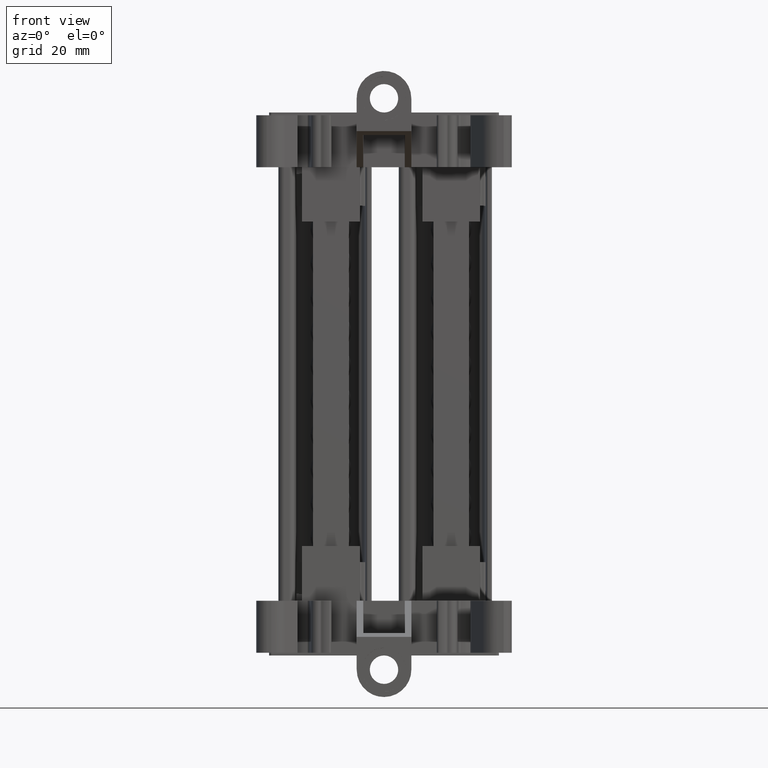
[diagram: clean part render]
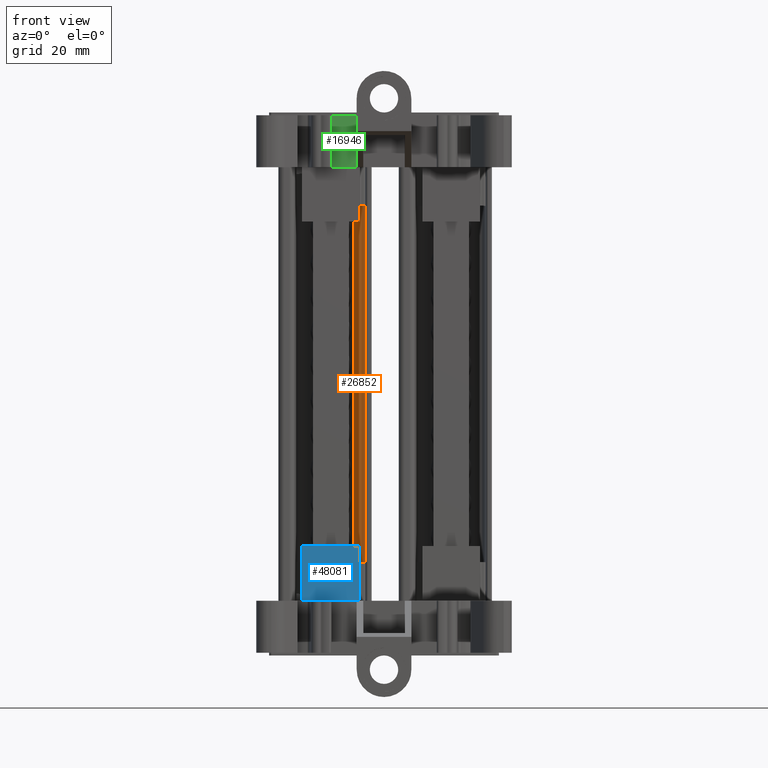
[diagram: same view with three faces highlighted in distinct colors, each labeled with its STEP entity id]
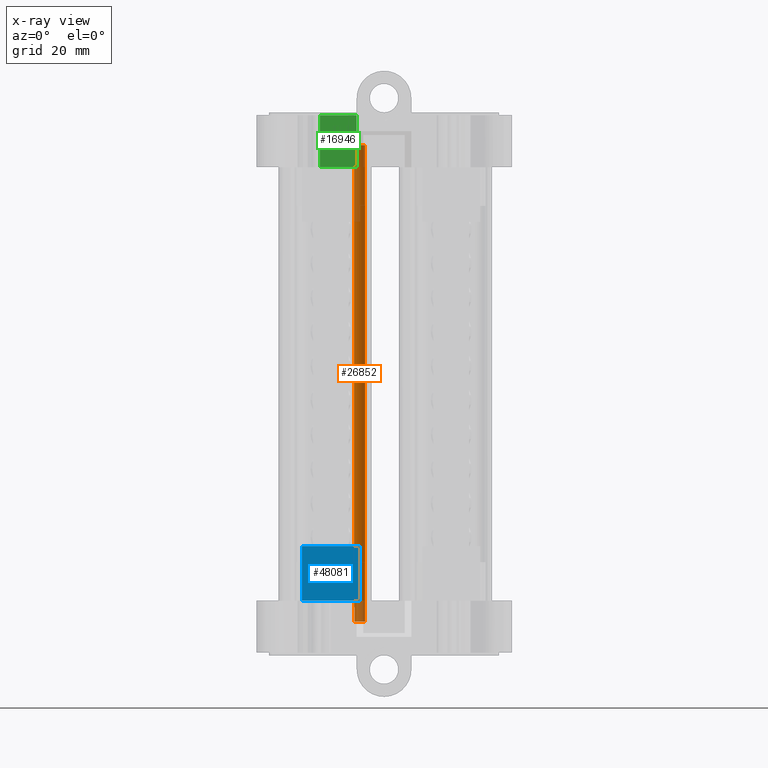
[diagram: x-ray of the same camera — body ghosted, the three highlighted faces saturated]
A machine part, front view with three faces highlighted in distinct colors.
The next image is the same camera in x-ray (body ghosted, the three faces saturated) — at least one of them is partly hidden behind the body in this view.
Their STEP definitions:

[orange] entity #26852 — the highlighted cylindrical surface (edge-blend (fillet) strip) has radius 2.0067 mm, axis along (-0, -0, 1).
#25507 = EDGE_CURVE ( 'NONE', #70508, #70449, #47350, .T. ) ;
#25545 = EDGE_CURVE ( 'NONE', #70519, #70432, #60478, .T. ) ;
#26139 = EDGE_CURVE ( 'NONE', #73202, #70449, #59098, .T. ) ;
#26190 = EDGE_CURVE ( 'NONE', #70519, #73166, #59431, .T. ) ;
#26335 = EDGE_CURVE ( 'NONE', #73539, #73202, #54666, .T. ) ;
#26389 = EDGE_CURVE ( 'NONE', #70508, #70432, #60448, .T. ) ;
#26489 = EDGE_CURVE ( 'NONE', #31606, #73166, #66951, .T. ) ;
#26534 = EDGE_CURVE ( 'NONE', #31606, #73539, #60986, .T. ) ;
#26852 = ADVANCED_FACE ( 'NONE', ( #62604 ), #62605, .F. ) ;
#31606 = VERTEX_POINT ( 'NONE', #65071 ) ;
#31984 = ORIENTED_EDGE ( 'NONE', *, *, #25545, .T. ) ;
#31985 = ORIENTED_EDGE ( 'NONE', *, *, #26489, .T. ) ;
#31986 = ORIENTED_EDGE ( 'NONE', *, *, #26534, .F. ) ;
#31993 = ORIENTED_EDGE ( 'NONE', *, *, #26389, .F. ) ;
#32008 = ORIENTED_EDGE ( 'NONE', *, *, #26190, .F. ) ;
#32016 = ORIENTED_EDGE ( 'NONE', *, *, #25507, .T. ) ;
#32020 = ORIENTED_EDGE ( 'NONE', *, *, #26335, .F. ) ;
#32025 = ORIENTED_EDGE ( 'NONE', *, *, #26139, .F. ) ;
#47259 = CARTESIAN_POINT ( 'NONE',  ( -52.24316901484217400, 35.55127427675401500, -33.27719254363132300 ) ) ;
#47267 = CARTESIAN_POINT ( 'NONE',  ( -52.20970799287137300, 35.55043718499700100, -33.27680236406833100 ) ) ;
#47272 = CARTESIAN_POINT ( 'NONE',  ( -52.27663004030439700, 35.55127427675410000, -33.27758272319430700 ) ) ;
#47273 = CARTESIAN_POINT ( 'NONE',  ( -52.17628882413481500, 35.54876404843481900, -33.27641218450531800 ) ) ;
#47350 = B_SPLINE_CURVE_WITH_KNOTS ( 'NONE', 3,
 ( #47272, #47259, #47267, #47273 ),
 .UNSPECIFIED., .F., .F.,
 ( 4, 4 ),
 ( 0.0000000000000000000, 1.000000000000000000 ),
 .UNSPECIFIED. ) ;
#47447 = CARTESIAN_POINT ( 'NONE',  ( -52.27663004030749500, 35.55127427675279300, 48.15197817209668300 ) ) ;
#47451 = CARTESIAN_POINT ( 'NONE',  ( -52.24316901483617700, 35.55127427675277100, 48.15158799253347900 ) ) ;
#47491 = CARTESIAN_POINT ( 'NONE',  ( -52.20970799285478800, 35.55043718499530300, 48.15119781297027400 ) ) ;
#47495 = CARTESIAN_POINT ( 'NONE',  ( -52.17628882410767200, 35.54876404843211900, 48.15080763340704800 ) ) ;
#54666 = B_SPLINE_CURVE_WITH_KNOTS ( 'NONE', 3,
 ( #61134, #61209, #61181, #61182, #61216, #61201, #61236, #61185, #61219, #61189, #61195, #61227, #61229, #61235, #61206, #61188, #61183, #61196, #61211, #61197 ),
 .UNSPECIFIED., .F., .F.,
 ( 4, 1, 1, 1, 2, 2, 2, 1, 1, 1, 2, 2, 4 ),
 ( 0.0000000000000000000, 0.1249999999999492100, 0.1874999999999238100, 0.2187499999999145400, 0.2343749999999144900, 0.2499999999999144000, 0.4999999999999157300, 0.6249999999999162900, 0.6874999999999175100, 0.7187499999999150700, 0.7343749999999184000, 0.7499999999999217300, 1.000000000000000000 ),
 .UNSPECIFIED. ) ;
#59098 = LINE ( 'NONE', #59146, #66773 ) ;
#59146 = CARTESIAN_POINT ( 'NONE',  ( -52.17628882413501400, 35.54876404843432900, -4.118985860277280000 ) ) ;
#59148 = DIRECTION ( 'NONE',  ( -6.982962677686750300E-015, -1.604252062634165100E-014, 1.000000000000000000 ) ) ;
#59431 = LINE ( 'NONE', #59456, #66797 ) ;
#59446 = DIRECTION ( 'NONE',  ( -6.982962677686750300E-015, -1.604252062634165100E-014, 1.000000000000000000 ) ) ;
#59456 = CARTESIAN_POINT ( 'NONE',  ( -52.17628882410730300, 35.54876404843294300, -4.118985860277280000 ) ) ;
#60447 = DIRECTION ( 'NONE',  ( -6.982962677686750300E-015, -1.604252062634165100E-014, 1.000000000000000000 ) ) ;
#60448 = LINE ( 'NONE', #60469, #66908 ) ;
#60469 = CARTESIAN_POINT ( 'NONE',  ( -52.27663004030481600, 35.55127427675364500, -4.118985860277280900 ) ) ;
#60478 = B_SPLINE_CURVE_WITH_KNOTS ( 'NONE', 3,
 ( #47495, #47491, #47451, #47447 ),
 .UNSPECIFIED., .F., .F.,
 ( 4, 4 ),
 ( 0.0000000000000000000, 1.000000000000000000 ),
 .UNSPECIFIED. ) ;
#60859 = DIRECTION ( 'NONE',  ( -6.982962677686750300E-015, -1.604252062634165100E-014, 1.000000000000000000 ) ) ;
#60872 = DIRECTION ( 'NONE',  ( 0.0000000000000000000, -1.000000000000000000, -1.728912579608917200E-014 ) ) ;
#60879 = CARTESIAN_POINT ( 'NONE',  ( -52.27663004031118300, 33.54455225224276700, 50.97218928989192200 ) ) ;
#60986 = LINE ( 'NONE', #61007, #67011 ) ;
#61007 = CARTESIAN_POINT ( 'NONE',  ( -50.27021364928481300, 33.57957438061639300, -4.118985860277298600 ) ) ;
#61024 = DIRECTION ( 'NONE',  ( 6.982962677686750300E-015, 1.604252062634165100E-014, -1.000000000000000000 ) ) ;
#61134 = CARTESIAN_POINT ( 'NONE',  ( -50.27021364928347000, 33.57957438061640000, -35.85898586027698800 ) ) ;
#61181 = CARTESIAN_POINT ( 'NONE',  ( -50.29199771328523400, 33.88324033638723200, -35.85898586027694500 ) ) ;
#61182 = CARTESIAN_POINT ( 'NONE',  ( -50.34295626955884700, 34.08774727785083800, -35.85898586027696000 ) ) ;
#61183 = CARTESIAN_POINT ( 'NONE',  ( -51.45886104362175200, 35.37716029385782700, -35.85898586027694500 ) ) ;
#61185 = CARTESIAN_POINT ( 'NONE',  ( -50.40657437389865000, 34.27265413136757400, -35.85898586027696000 ) ) ;
#61188 = CARTESIAN_POINT ( 'NONE',  ( -51.44281856662784900, 35.36994325695323500, -35.85898586027693800 ) ) ;
#61189 = CARTESIAN_POINT ( 'NONE',  ( -50.65060756123853000, 34.75017955830738000, -35.85898586027694500 ) ) ;
#61195 = CARTESIAN_POINT ( 'NONE',  ( -50.92681298005320700, 35.03524609474163000, -35.85898586027696000 ) ) ;
#61196 = CARTESIAN_POINT ( 'NONE',  ( -51.69695709970039100, 35.48109376553508600, -35.85898586027694500 ) ) ;
#61197 = CARTESIAN_POINT ( 'NONE',  ( -52.17628882413478700, 35.54876404843483300, -35.85898586027695200 ) ) ;
#61201 = CARTESIAN_POINT ( 'NONE',  ( -50.39093404514704800, 34.23121047521791400, -35.85898586027695200 ) ) ;
#61206 = CARTESIAN_POINT ( 'NONE',  ( -51.41310524923429200, 35.35611606860295100, -35.85898586027694500 ) ) ;
#61209 = CARTESIAN_POINT ( 'NONE',  ( -50.27248341717481800, 33.70249505963008100, -35.85898586027695200 ) ) ;
#61211 = CARTESIAN_POINT ( 'NONE',  ( -51.93143114308554700, 35.53625710585138400, -35.85898586027693100 ) ) ;
#61216 = CARTESIAN_POINT ( 'NONE',  ( -50.37548351706514900, 34.18841011156103300, -35.85898586027694500 ) ) ;
#61219 = CARTESIAN_POINT ( 'NONE',  ( -50.51087000152453800, 34.53374674815177100, -35.85898586027694500 ) ) ;
#61227 = CARTESIAN_POINT ( 'NONE',  ( -51.07562960811491600, 35.16189399279466000, -35.85898586027693800 ) ) ;
#61229 = CARTESIAN_POINT ( 'NONE',  ( -51.26799836516538300, 35.28185047606933000, -35.85898586027693800 ) ) ;
#61235 = CARTESIAN_POINT ( 'NONE',  ( -51.36887008310193900, 35.33487886825987100, -35.85898586027694500 ) ) ;
#61236 = CARTESIAN_POINT ( 'NONE',  ( -50.40157001479067100, 34.25966830636910000, -35.85898586027694500 ) ) ;
#62604 = FACE_OUTER_BOUND ( 'NONE', #82633, .T. ) ;
#62605 = CYLINDRICAL_SURFACE ( 'NONE', #67415, 2.006722024510000600 ) ;
#62608 = CARTESIAN_POINT ( 'NONE',  ( -52.27663004031079900, 33.54455225224364800, -4.118985860277312800 ) ) ;
#62611 = DIRECTION ( 'NONE',  ( -6.982962677686750300E-015, -1.604252062634165100E-014, 1.000000000000000000 ) ) ;
#62622 = DIRECTION ( 'NONE',  ( 0.0000000000000000000, -1.000000000000000000, -1.599244136138248400E-014 ) ) ;
#65071 = CARTESIAN_POINT ( 'NONE',  ( -50.27021364928357600, 33.57957438061504300, 50.97218928989193600 ) ) ;
#66773 = VECTOR ( 'NONE', #59148, 1000.000000000000000 ) ;
#66797 = VECTOR ( 'NONE', #59446, 1000.000000000000000 ) ;
#66908 = VECTOR ( 'NONE', #60447, 1000.000000000000000 ) ;
#66951 = CIRCLE ( 'NONE', #66992, 2.006722024510000600 ) ;
#66992 = AXIS2_PLACEMENT_3D ( 'NONE', #60879, #60859, #60872 ) ;
#67011 = VECTOR ( 'NONE', #61024, 1000.000000000000000 ) ;
#67415 = AXIS2_PLACEMENT_3D ( 'NONE', #62608, #62611, #62622 ) ;
#70432 = VERTEX_POINT ( 'NONE', #80548 ) ;
#70449 = VERTEX_POINT ( 'NONE', #80573 ) ;
#70508 = VERTEX_POINT ( 'NONE', #80621 ) ;
#70519 = VERTEX_POINT ( 'NONE', #80612 ) ;
#73166 = VERTEX_POINT ( 'NONE', #80865 ) ;
#73202 = VERTEX_POINT ( 'NONE', #80883 ) ;
#73539 = VERTEX_POINT ( 'NONE', #81030 ) ;
#80548 = CARTESIAN_POINT ( 'NONE',  ( -52.27663004030749500, 35.55127427675279300, 48.15197817209668300 ) ) ;
#80573 = CARTESIAN_POINT ( 'NONE',  ( -52.17628882413481500, 35.54876404843481900, -33.27641218450531800 ) ) ;
#80612 = CARTESIAN_POINT ( 'NONE',  ( -52.17628882410767200, 35.54876404843211900, 48.15080763340704800 ) ) ;
#80621 = CARTESIAN_POINT ( 'NONE',  ( -52.27663004030439700, 35.55127427675410000, -33.27758272319430700 ) ) ;
#80865 = CARTESIAN_POINT ( 'NONE',  ( -52.17628882410767200, 35.54876404843206200, 50.97218928989215000 ) ) ;
#80883 = CARTESIAN_POINT ( 'NONE',  ( -52.17628882413478700, 35.54876404843483300, -35.85898586027695200 ) ) ;
#81030 = CARTESIAN_POINT ( 'NONE',  ( -50.27021364928347000, 33.57957438061640000, -35.85898586027698800 ) ) ;
#82633 = EDGE_LOOP ( 'NONE', ( #32020, #31986, #31985, #32008, #31984, #31993, #32016, #32025 ) ) ;

[blue] entity #48081 — the highlighted planar face has unit normal (-0, -1, 0).
#8677 = EDGE_CURVE ( 'NONE', #11985, #12000, #52062, .T. ) ;
#8694 = EDGE_CURVE ( 'NONE', #11952, #11945, #52132, .T. ) ;
#8732 = EDGE_CURVE ( 'NONE', #11985, #11945, #60090, .T. ) ;
#8772 = EDGE_CURVE ( 'NONE', #11952, #12000, #52213, .T. ) ;
#11945 = VERTEX_POINT ( 'NONE', #36186 ) ;
#11952 = VERTEX_POINT ( 'NONE', #36150 ) ;
#11985 = VERTEX_POINT ( 'NONE', #36216 ) ;
#12000 = VERTEX_POINT ( 'NONE', #36154 ) ;
#28700 = EDGE_LOOP ( 'NONE', ( #66438, #66440, #66468, #66512 ) ) ;
#36150 = CARTESIAN_POINT ( 'NONE',  ( -51.22521002070188700, 11.42205551702882400, -22.12168353174845600 ) ) ;
#36154 = CARTESIAN_POINT ( 'NONE',  ( -61.77805005991850600, 11.42205551702949200, -22.12168353174845600 ) ) ;
#36186 = CARTESIAN_POINT ( 'NONE',  ( -51.22521002070131100, 11.42205551702878600, -32.09224290364846900 ) ) ;
#36216 = CARTESIAN_POINT ( 'NONE',  ( -61.77805005991850600, 11.42205551702956300, -32.09224290364846900 ) ) ;
#37281 = VECTOR ( 'NONE', #52122, 1000.000000000000000 ) ;
#37283 = VECTOR ( 'NONE', #52134, 1000.000000000000000 ) ;
#37291 = VECTOR ( 'NONE', #52231, 1000.000000000000000 ) ;
#38828 = AXIS2_PLACEMENT_3D ( 'NONE', #70800, #70793, #70762 ) ;
#48081 = ADVANCED_FACE ( 'NONE', ( #70797 ), #70779, .T. ) ;
#52062 = LINE ( 'NONE', #52116, #37281 ) ;
#52116 = CARTESIAN_POINT ( 'NONE',  ( -61.77805005991850600, 11.42205551702963400, 47.32994441192240500 ) ) ;
#52122 = DIRECTION ( 'NONE',  ( -3.469446952988439500E-018, 4.557183009288460000E-031, 1.000000000000000000 ) ) ;
#52132 = LINE ( 'NONE', #52133, #37283 ) ;
#52133 = CARTESIAN_POINT ( 'NONE',  ( -51.22521002070193700, 11.42205551702925300, 47.32994441192240500 ) ) ;
#52134 = DIRECTION ( 'NONE',  ( 3.469446950784518900E-018, 5.041723658430198100E-031, -1.000000000000000000 ) ) ;
#52169 = CARTESIAN_POINT ( 'NONE',  ( -58.26043671351279600, 11.42205551702901200, -32.09224290364848300 ) ) ;
#52171 = CARTESIAN_POINT ( 'NONE',  ( -51.22521002070131100, 11.42205551702878600, -32.09224290364846900 ) ) ;
#52197 = CARTESIAN_POINT ( 'NONE',  ( -61.77805005991850600, 11.42205551702956300, -32.09224290364846900 ) ) ;
#52199 = CARTESIAN_POINT ( 'NONE',  ( -54.74282336710705700, 11.42205551702874900, -32.09224290364848300 ) ) ;
#52213 = LINE ( 'NONE', #52237, #37291 ) ;
#52231 = DIRECTION ( 'NONE',  ( -1.000000000000000000, 7.419278866477789400E-014, -0.0000000000000000000 ) ) ;
#52237 = CARTESIAN_POINT ( 'NONE',  ( -64.51995388718779600, 11.42205551702955400, -22.12168353174845200 ) ) ;
#60090 = B_SPLINE_CURVE_WITH_KNOTS ( 'NONE', 3,
 ( #52197, #52169, #52199, #52171 ),
 .UNSPECIFIED., .F., .F.,
 ( 4, 4 ),
 ( 0.0000000000000000000, 1.000000000000000000 ),
 .UNSPECIFIED. ) ;
#66438 = ORIENTED_EDGE ( 'NONE', *, *, #8772, .T. ) ;
#66440 = ORIENTED_EDGE ( 'NONE', *, *, #8677, .F. ) ;
#66468 = ORIENTED_EDGE ( 'NONE', *, *, #8732, .T. ) ;
#66512 = ORIENTED_EDGE ( 'NONE', *, *, #8694, .F. ) ;
#70762 = DIRECTION ( 'NONE',  ( 1.000000000000000000, -7.419278866477789400E-014, 0.0000000000000000000 ) ) ;
#70779 = PLANE ( 'NONE',  #38828 ) ;
#70793 = DIRECTION ( 'NONE',  ( -7.419278866477789400E-014, -1.000000000000000000, 7.965850201685501300E-015 ) ) ;
#70797 = FACE_OUTER_BOUND ( 'NONE', #28700, .T. ) ;
#70800 = CARTESIAN_POINT ( 'NONE',  ( -64.51995388718779600, 11.42205551702894400, -98.64254787400605600 ) ) ;

[green] entity #16946 — the highlighted planar face has unit normal (0, 1, -0).
#7016 = AXIS2_PLACEMENT_3D ( 'NONE', #42874, #42970, #42919 ) ;
#7368 = VECTOR ( 'NONE', #47395, 1000.000000000000000 ) ;
#9777 = EDGE_CURVE ( 'NONE', #40956, #40961, #88791, .T. ) ;
#9823 = EDGE_CURVE ( 'NONE', #40961, #40933, #88887, .T. ) ;
#16946 = ADVANCED_FACE ( 'NONE', ( #42962 ), #42930, .F. ) ;
#21364 = ORIENTED_EDGE ( 'NONE', *, *, #25556, .F. ) ;
#21421 = ORIENTED_EDGE ( 'NONE', *, *, #9823, .F. ) ;
#21423 = ORIENTED_EDGE ( 'NONE', *, *, #9777, .F. ) ;
#21471 = ORIENTED_EDGE ( 'NONE', *, *, #25582, .F. ) ;
#25556 = EDGE_CURVE ( 'NONE', #40933, #70474, #47398, .T. ) ;
#25582 = EDGE_CURVE ( 'NONE', #70474, #40956, #88576, .T. ) ;
#37424 = VECTOR ( 'NONE', #88780, 1000.000000000000000 ) ;
#37434 = VECTOR ( 'NONE', #88854, 1000.000000000000000 ) ;
#40933 = VERTEX_POINT ( 'NONE', #69434 ) ;
#40956 = VERTEX_POINT ( 'NONE', #69541 ) ;
#40961 = VERTEX_POINT ( 'NONE', #69485 ) ;
#42874 = CARTESIAN_POINT ( 'NONE',  ( -35.13299101561717900, 11.22264432959170600, 77.87537240544149600 ) ) ;
#42919 = DIRECTION ( 'NONE',  ( -1.000000000000000000, 7.398150456059950500E-017, 0.0000000000000000000 ) ) ;
#42930 = PLANE ( 'NONE',  #7016 ) ;
#42962 = FACE_OUTER_BOUND ( 'NONE', #77605, .T. ) ;
#42970 = DIRECTION ( 'NONE',  ( 7.398150456059950500E-017, 1.000000000000000000, -4.551983995642022800E-046 ) ) ;
#47395 = DIRECTION ( 'NONE',  ( -3.367626247333662800E-062, -4.551983995642022800E-046, -1.000000000000000000 ) ) ;
#47398 = LINE ( 'NONE', #47463, #7368 ) ;
#47463 = CARTESIAN_POINT ( 'NONE',  ( -51.80778926014686200, 11.22264432959170800, 77.87537240544149600 ) ) ;
#47497 = CARTESIAN_POINT ( 'NONE',  ( -56.27728184189996300, 11.22264432959170600, 46.96663835255145600 ) ) ;
#47588 = CARTESIAN_POINT ( 'NONE',  ( -54.04253555102342000, 11.22264432959170800, 46.96663835255145600 ) ) ;
#47610 = CARTESIAN_POINT ( 'NONE',  ( -58.51202813277652100, 11.22264432959170600, 46.96663835255145600 ) ) ;
#47624 = CARTESIAN_POINT ( 'NONE',  ( -51.80778926014686200, 11.22264432959170800, 46.96663835255145600 ) ) ;
#69434 = CARTESIAN_POINT ( 'NONE',  ( -51.80778926014686200, 11.22264432959170800, 56.43866975585651600 ) ) ;
#69485 = CARTESIAN_POINT ( 'NONE',  ( -58.51202813277652100, 11.22264432959170600, 56.43866975585651600 ) ) ;
#69541 = CARTESIAN_POINT ( 'NONE',  ( -58.51202813277652100, 11.22264432959170600, 46.96663835255145600 ) ) ;
#70474 = VERTEX_POINT ( 'NONE', #80601 ) ;
#77605 = EDGE_LOOP ( 'NONE', ( #21423, #21471, #21364, #21421 ) ) ;
#80601 = CARTESIAN_POINT ( 'NONE',  ( -51.80778926014686200, 11.22264432959170800, 46.96663835255145600 ) ) ;
#88576 = B_SPLINE_CURVE_WITH_KNOTS ( 'NONE', 3,
 ( #47624, #47588, #47497, #47610 ),
 .UNSPECIFIED., .F., .F.,
 ( 4, 4 ),
 ( 0.0000000000000000000, 1.000000000000000000 ),
 .UNSPECIFIED. ) ;
#88777 = CARTESIAN_POINT ( 'NONE',  ( -58.51202813277652100, 11.22264432959170800, 77.87537240544149600 ) ) ;
#88780 = DIRECTION ( 'NONE',  ( 3.367626247333662800E-062, 4.551983995642022800E-046, 1.000000000000000000 ) ) ;
#88791 = LINE ( 'NONE', #88777, #37424 ) ;
#88854 = DIRECTION ( 'NONE',  ( 1.000000000000000000, -7.398150456059950500E-017, -0.0000000000000000000 ) ) ;
#88864 = CARTESIAN_POINT ( 'NONE',  ( -35.13299101561717900, 11.22264432959170600, 56.43866975585651600 ) ) ;
#88887 = LINE ( 'NONE', #88864, #37434 ) ;